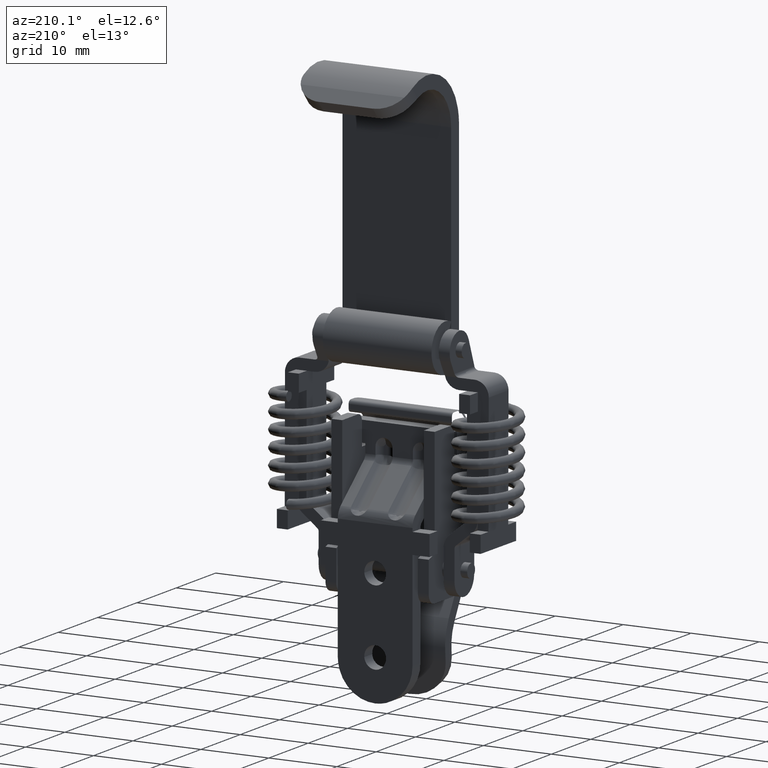
[diagram: clean part render]
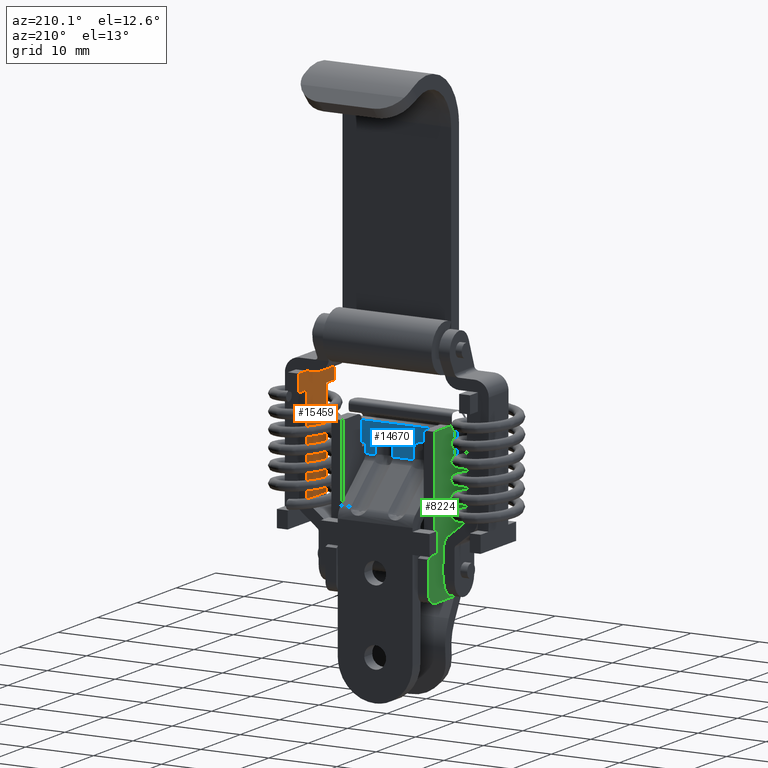
[diagram: same view with three faces highlighted in distinct colors, each labeled with its STEP entity id]
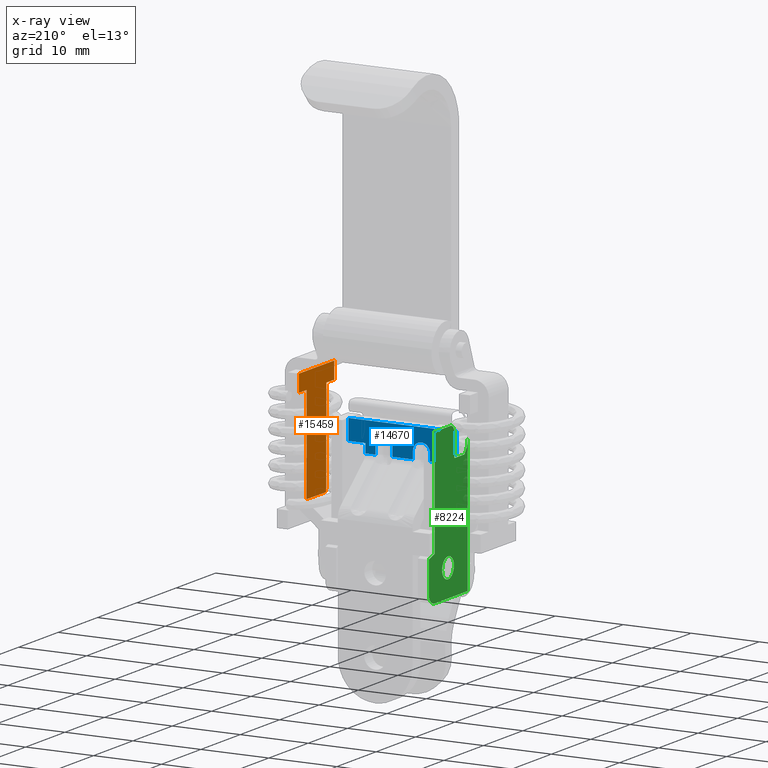
[diagram: x-ray of the same camera — body ghosted, the three highlighted faces saturated]
A machine part, auxiliary view with three faces highlighted in distinct colors.
The next image is the same camera in x-ray (body ghosted, the three faces saturated) — at least one of them is partly hidden behind the body in this view.
Their STEP definitions:

[orange] entity #15459 — the highlighted face is a freeform B-spline surface patch.
#14922=CARTESIAN_POINT('',(11.800003000000020,0.074714001614679,-21.751745550753700));
#14923=VERTEX_POINT('',#14922);
#14937=CARTESIAN_POINT('',(11.800003000000061,0.024935818044354,-7.491404451429734));
#14938=VERTEX_POINT('',#14937);
#14939=CARTESIAN_POINT('',(11.800003000000061,0.024935818044354,-7.491404451429734));
#14940=CARTESIAN_POINT('',(11.800003000000020,0.074714001614679,-21.751745550753700));
#14941=QUASI_UNIFORM_CURVE('',1,(#14939,#14940),.UNSPECIFIED.,.F.,.U.);
#14942=EDGE_CURVE('',#14938,#14923,#14941,.T.);
#15145=CARTESIAN_POINT('',(11.800003000000061,-4.975033783586811,-7.508857708889881));
#15146=VERTEX_POINT('',#15145);
#15152=CARTESIAN_POINT('',(11.800003000000020,-4.925255600016492,-21.769198808213851));
#15153=VERTEX_POINT('',#15152);
#15154=CARTESIAN_POINT('',(11.800003000000020,-4.925255600016492,-21.769198808213851));
#15155=CARTESIAN_POINT('',(11.800003000000061,-4.975033783586811,-7.508857708889881));
#15156=QUASI_UNIFORM_CURVE('',1,(#15154,#15155),.UNSPECIFIED.,.F.,.U.);
#15157=EDGE_CURVE('',#15153,#15146,#15156,.T.);
#15211=CARTESIAN_POINT('',(11.800003000000020,2.016197082326523,-4.984453347539087));
#15212=VERTEX_POINT('',#15211);
#15225=CARTESIAN_POINT('',(11.800003000000061,2.024923658696819,-7.484423148445675));
#15226=VERTEX_POINT('',#15225);
#15232=CARTESIAN_POINT('',(11.800003000000020,2.016197082326523,-4.984453347539087));
#15233=CARTESIAN_POINT('',(11.800003000000061,2.024923658696819,-7.484423148445675));
#15234=QUASI_UNIFORM_CURVE('',1,(#15232,#15233),.UNSPECIFIED.,.F.,.U.);
#15235=EDGE_CURVE('',#15212,#15226,#15234,.T.);
#15252=CARTESIAN_POINT('',(11.800003000000061,2.024923658696819,-7.484423148445675));
#15253=CARTESIAN_POINT('',(11.800003000000061,0.024935818044354,-7.491404451429734));
#15254=QUASI_UNIFORM_CURVE('',1,(#15252,#15253),.UNSPECIFIED.,.F.,.U.);
#15255=EDGE_CURVE('',#15226,#14938,#15254,.T.);
#15273=CARTESIAN_POINT('',(11.800003000000061,-6.975021624239162,-7.515839011873940));
#15274=VERTEX_POINT('',#15273);
#15280=CARTESIAN_POINT('',(11.800003000000061,-4.975033783586811,-7.508857708889881));
#15281=CARTESIAN_POINT('',(11.800003000000061,-6.975021624239162,-7.515839011873940));
#15282=QUASI_UNIFORM_CURVE('',1,(#15280,#15281),.UNSPECIFIED.,.F.,.U.);
#15283=EDGE_CURVE('',#15146,#15274,#15282,.T.);
#15301=CARTESIAN_POINT('',(11.800003000000020,-6.983748200609463,-5.015869210967352));
#15302=VERTEX_POINT('',#15301);
#15308=CARTESIAN_POINT('',(11.800003000000061,-6.975021624239162,-7.515839011873940));
#15309=CARTESIAN_POINT('',(11.800003000000020,-6.983748200609463,-5.015869210967352));
#15310=QUASI_UNIFORM_CURVE('',1,(#15308,#15309),.UNSPECIFIED.,.F.,.U.);
#15311=EDGE_CURVE('',#15274,#15302,#15310,.T.);
#15429=CARTESIAN_POINT('',(11.800003000000020,2.016197082326523,-4.984453347539087));
#15430=CARTESIAN_POINT('',(11.800003000000020,-6.983748200609463,-5.015869210967352));
#15431=QUASI_UNIFORM_CURVE('',1,(#15429,#15430),.UNSPECIFIED.,.F.,.U.);
#15432=EDGE_CURVE('',#15212,#15302,#15431,.T.);
#15440=CARTESIAN_POINT('',(11.800003000000020,-7.436217762694115,-4.180260936302923));
#15441=CARTESIAN_POINT('',(11.800003000000020,-7.371868375892993,-22.614927280043620));
#15442=CARTESIAN_POINT('',(11.800003000000020,2.462822260517238,-4.145706627397315));
#15443=CARTESIAN_POINT('',(11.800003000000020,2.527171647318360,-22.580372971138011));
#15444=B_SPLINE_SURFACE_WITH_KNOTS('',1,1,((#15440,#15442),(#15441,#15443)),.UNSPECIFIED.,.F.,.F.,.U.,(2,2),(2,2),(0.0,18.434778421179459),(0.0,9.899100206511196),.UNSPECIFIED.);
#15445=ORIENTED_EDGE('',*,*,#15283,.T.);
#15446=ORIENTED_EDGE('',*,*,#15311,.T.);
#15447=ORIENTED_EDGE('',*,*,#15432,.F.);
#15448=ORIENTED_EDGE('',*,*,#15235,.T.);
#15449=ORIENTED_EDGE('',*,*,#15255,.T.);
#15450=ORIENTED_EDGE('',*,*,#14942,.T.);
#15451=CARTESIAN_POINT('',(11.800003000000020,0.074714001614679,-21.751745550753700));
#15452=CARTESIAN_POINT('',(11.800003000000020,-4.925255600016492,-21.769198808213851));
#15453=QUASI_UNIFORM_CURVE('',1,(#15451,#15452),.UNSPECIFIED.,.F.,.U.);
#15454=EDGE_CURVE('',#14923,#15153,#15453,.T.);
#15455=ORIENTED_EDGE('',*,*,#15454,.T.);
#15456=ORIENTED_EDGE('',*,*,#15157,.T.);
#15457=EDGE_LOOP('',(#15445,#15446,#15447,#15448,#15449,#15450,#15455,#15456));
#15458=FACE_OUTER_BOUND('',#15457,.T.);
#15459=ADVANCED_FACE('',(#15458),#15444,.F.);

[blue] entity #14670 — the highlighted face is a freeform B-spline surface patch.
#12302=CARTESIAN_POINT('',(-4.0,-4.0,-15.852875247089701));
#12303=VERTEX_POINT('',#12302);
#12318=CARTESIAN_POINT('',(-5.500000000000000,-4.0,-15.852875247089701));
#12319=VERTEX_POINT('',#12318);
#12333=CARTESIAN_POINT('',(-5.500000000000000,-4.0,-15.852875247089701));
#12334=CARTESIAN_POINT('',(-4.0,-4.0,-15.852875247089701));
#12335=QUASI_UNIFORM_CURVE('',1,(#12333,#12334),.UNSPECIFIED.,.F.,.U.);
#12336=EDGE_CURVE('',#12319,#12303,#12335,.T.);
#12368=CARTESIAN_POINT('',(1.499999999999946,-4.0,-14.750014999999999));
#12369=VERTEX_POINT('',#12368);
#12383=CARTESIAN_POINT('',(2.750000000013761,-4.000000000173091,-13.500015000129819));
#12384=VERTEX_POINT('',#12383);
#12385=CARTESIAN_POINT('',(2.750000000013762,-4.000000000173093,-13.500015000129821));
#12386=CARTESIAN_POINT('',(1.499999999999973,-4.000000000086545,-13.500015000051153));
#12387=CARTESIAN_POINT('',(1.499999999999946,-4.0,-14.750014999999999));
#12395=(BOUNDED_CURVE()B_SPLINE_CURVE(2,(#12385,#12386,#12387),.UNSPECIFIED.,.F.,.U.)B_SPLINE_CURVE_WITH_KNOTS((3,3),(0.499999999996108,1.0),.UNSPECIFIED.)CURVE()GEOMETRIC_REPRESENTATION_ITEM()RATIONAL_B_SPLINE_CURVE((1.000000000004560,0.707106781184268,1.0))REPRESENTATION_ITEM(''));
#12396=EDGE_CURVE('',#12384,#12369,#12395,.T.);
#12442=CARTESIAN_POINT('',(4.0,-4.0,-14.750014999999999));
#12443=VERTEX_POINT('',#12442);
#12444=CARTESIAN_POINT('',(4.0,-4.0,-14.750014999999999));
#12445=CARTESIAN_POINT('',(4.0,-4.000000000086545,-13.500015000078671));
#12446=CARTESIAN_POINT('',(2.750000000013761,-4.000000000173091,-13.500015000129819));
#12454=(BOUNDED_CURVE()B_SPLINE_CURVE(2,(#12444,#12445,#12446),.UNSPECIFIED.,.F.,.U.)B_SPLINE_CURVE_WITH_KNOTS((3,3),(0.0,0.499999999996108),.UNSPECIFIED.)CURVE()GEOMETRIC_REPRESENTATION_ITEM()RATIONAL_B_SPLINE_CURVE((1.0,0.707106781188828,0.999999999995440))REPRESENTATION_ITEM(''));
#12455=EDGE_CURVE('',#12443,#12384,#12454,.T.);
#12500=CARTESIAN_POINT('',(-4.0,-4.0,-14.750014999999999));
#12501=VERTEX_POINT('',#12500);
#12515=CARTESIAN_POINT('',(-2.749999999986240,-4.000000000173091,-13.500015000129819));
#12516=VERTEX_POINT('',#12515);
#12517=CARTESIAN_POINT('',(-2.749999999986238,-4.000000000173089,-13.500015000129810));
#12518=CARTESIAN_POINT('',(-4.000000000000000,-4.000000000086545,-13.500015000051148));
#12519=CARTESIAN_POINT('',(-4.0,-4.0,-14.750014999999999));
#12527=(BOUNDED_CURVE()B_SPLINE_CURVE(2,(#12517,#12518,#12519),.UNSPECIFIED.,.F.,.U.)B_SPLINE_CURVE_WITH_KNOTS((3,3),(0.499999999996108,1.0),.UNSPECIFIED.)CURVE()GEOMETRIC_REPRESENTATION_ITEM()RATIONAL_B_SPLINE_CURVE((1.000000000004560,0.707106781184268,1.0))REPRESENTATION_ITEM(''));
#12528=EDGE_CURVE('',#12516,#12501,#12527,.T.);
#12574=CARTESIAN_POINT('',(-1.499999999999946,-4.0,-14.750014999999999));
#12575=VERTEX_POINT('',#12574);
#12576=CARTESIAN_POINT('',(-1.499999999999946,-4.0,-14.750014999999999));
#12577=CARTESIAN_POINT('',(-1.499999999999973,-4.000000000086545,-13.500015000078667));
#12578=CARTESIAN_POINT('',(-2.749999999986240,-4.000000000173091,-13.500015000129819));
#12586=(BOUNDED_CURVE()B_SPLINE_CURVE(2,(#12576,#12577,#12578),.UNSPECIFIED.,.F.,.U.)B_SPLINE_CURVE_WITH_KNOTS((3,3),(0.0,0.499999999996108),.UNSPECIFIED.)CURVE()GEOMETRIC_REPRESENTATION_ITEM()RATIONAL_B_SPLINE_CURVE((1.0,0.707106781188828,0.999999999995440))REPRESENTATION_ITEM(''));
#12587=EDGE_CURVE('',#12575,#12516,#12586,.T.);
#12638=CARTESIAN_POINT('',(1.499999999999946,-4.0,-15.852875247089701));
#12639=VERTEX_POINT('',#12638);
#12741=CARTESIAN_POINT('',(1.499999999999946,-4.0,-14.750014999999999));
#12742=CARTESIAN_POINT('',(1.499999999999946,-4.0,-15.852875247089701));
#12743=QUASI_UNIFORM_CURVE('',1,(#12741,#12742),.UNSPECIFIED.,.F.,.U.);
#12744=EDGE_CURVE('',#12369,#12639,#12743,.T.);
#12901=CARTESIAN_POINT('',(4.0,-4.0,-15.852875247089701));
#12902=VERTEX_POINT('',#12901);
#12918=CARTESIAN_POINT('',(4.0,-4.0,-14.750014999999999));
#12919=CARTESIAN_POINT('',(4.0,-4.0,-15.852875247089701));
#12920=QUASI_UNIFORM_CURVE('',1,(#12918,#12919),.UNSPECIFIED.,.F.,.U.);
#12921=EDGE_CURVE('',#12443,#12902,#12920,.T.);
#13610=CARTESIAN_POINT('',(-4.0,-4.0,-14.750014999999999));
#13611=CARTESIAN_POINT('',(-4.0,-4.0,-15.852875247089701));
#13612=QUASI_UNIFORM_CURVE('',1,(#13610,#13611),.UNSPECIFIED.,.F.,.U.);
#13613=EDGE_CURVE('',#12501,#12303,#13612,.T.);
#13756=CARTESIAN_POINT('',(-1.499999999999946,-4.0,-15.852875247089701));
#13757=VERTEX_POINT('',#13756);
#13773=CARTESIAN_POINT('',(-1.499999999999946,-4.0,-14.750014999999999));
#13774=CARTESIAN_POINT('',(-1.499999999999946,-4.0,-15.852875247089701));
#13775=QUASI_UNIFORM_CURVE('',1,(#13773,#13774),.UNSPECIFIED.,.F.,.U.);
#13776=EDGE_CURVE('',#12575,#13757,#13775,.T.);
#14381=CARTESIAN_POINT('',(5.500000000000000,-4.0,-15.852875247089701));
#14382=VERTEX_POINT('',#14381);
#14396=CARTESIAN_POINT('',(5.500000000000000,-4.0,-14.500000000000000));
#14397=VERTEX_POINT('',#14396);
#14398=CARTESIAN_POINT('',(5.500000000000000,-4.0,-15.852875247089701));
#14399=CARTESIAN_POINT('',(5.500000000000000,-4.0,-14.500000000000000));
#14400=QUASI_UNIFORM_CURVE('',1,(#14398,#14399),.UNSPECIFIED.,.F.,.U.);
#14401=EDGE_CURVE('',#14382,#14397,#14400,.T.);
#14425=CARTESIAN_POINT('',(-5.500000000000000,-4.0,-14.500000000000000));
#14426=VERTEX_POINT('',#14425);
#14432=CARTESIAN_POINT('',(-5.500000000000000,-4.0,-14.500000000000000));
#14433=CARTESIAN_POINT('',(-5.500000000000000,-4.0,-15.852875247089701));
#14434=QUASI_UNIFORM_CURVE('',1,(#14432,#14433),.UNSPECIFIED.,.F.,.U.);
#14435=EDGE_CURVE('',#14426,#12319,#14434,.T.);
#14464=CARTESIAN_POINT('',(8.0,-4.0,-14.500000000000000));
#14465=VERTEX_POINT('',#14464);
#14466=CARTESIAN_POINT('',(5.500000000000000,-4.0,-14.500000000000000));
#14467=CARTESIAN_POINT('',(8.0,-4.0,-14.500000000000000));
#14468=QUASI_UNIFORM_CURVE('',1,(#14466,#14467),.UNSPECIFIED.,.F.,.U.);
#14469=EDGE_CURVE('',#14397,#14465,#14468,.T.);
#14486=CARTESIAN_POINT('',(8.0,-4.0,-11.500000000000000));
#14487=VERTEX_POINT('',#14486);
#14488=CARTESIAN_POINT('',(8.0,-4.0,-14.500000000000000));
#14489=CARTESIAN_POINT('',(8.0,-4.0,-11.500000000000000));
#14490=QUASI_UNIFORM_CURVE('',1,(#14488,#14489),.UNSPECIFIED.,.F.,.U.);
#14491=EDGE_CURVE('',#14465,#14487,#14490,.T.);
#14508=CARTESIAN_POINT('',(-8.0,-4.0,-11.500000000000000));
#14509=VERTEX_POINT('',#14508);
#14510=CARTESIAN_POINT('',(8.0,-4.0,-11.500000000000000));
#14511=CARTESIAN_POINT('',(-8.0,-4.0,-11.500000000000000));
#14512=QUASI_UNIFORM_CURVE('',1,(#14510,#14511),.UNSPECIFIED.,.F.,.U.);
#14513=EDGE_CURVE('',#14487,#14509,#14512,.T.);
#14530=CARTESIAN_POINT('',(-8.0,-4.0,-14.500000000000000));
#14531=VERTEX_POINT('',#14530);
#14532=CARTESIAN_POINT('',(-8.0,-4.0,-11.500000000000000));
#14533=CARTESIAN_POINT('',(-8.0,-4.0,-14.500000000000000));
#14534=QUASI_UNIFORM_CURVE('',1,(#14532,#14533),.UNSPECIFIED.,.F.,.U.);
#14535=EDGE_CURVE('',#14509,#14531,#14534,.T.);
#14552=CARTESIAN_POINT('',(-8.0,-4.0,-14.500000000000000));
#14553=CARTESIAN_POINT('',(-5.500000000000000,-4.0,-14.500000000000000));
#14554=QUASI_UNIFORM_CURVE('',1,(#14552,#14553),.UNSPECIFIED.,.F.,.U.);
#14555=EDGE_CURVE('',#14531,#14426,#14554,.T.);
#14630=CARTESIAN_POINT('',(-1.499999999999946,-4.0,-15.852875247089701));
#14631=CARTESIAN_POINT('',(1.499999999999946,-4.0,-15.852875247089701));
#14632=QUASI_UNIFORM_CURVE('',1,(#14630,#14631),.UNSPECIFIED.,.F.,.U.);
#14633=EDGE_CURVE('',#13757,#12639,#14632,.T.);
#14641=CARTESIAN_POINT('',(-8.799199968988896,-4.0,-11.282573889844590));
#14642=CARTESIAN_POINT('',(-8.799199968988896,-4.0,-16.070301473998331));
#14643=CARTESIAN_POINT('',(8.799200398142338,-4.0,-11.282573889844590));
#14644=CARTESIAN_POINT('',(8.799200398142338,-4.0,-16.070301473998331));
#14645=B_SPLINE_SURFACE_WITH_KNOTS('',1,1,((#14641,#14643),(#14642,#14644)),.UNSPECIFIED.,.F.,.F.,.U.,(2,2),(2,2),(0.0,4.787727584153746),(0.0,17.598400367131230),.UNSPECIFIED.);
#14646=ORIENTED_EDGE('',*,*,#12921,.F.);
#14647=ORIENTED_EDGE('',*,*,#12455,.T.);
#14648=ORIENTED_EDGE('',*,*,#12396,.T.);
#14649=ORIENTED_EDGE('',*,*,#12744,.T.);
#14650=ORIENTED_EDGE('',*,*,#14633,.F.);
#14651=ORIENTED_EDGE('',*,*,#13776,.F.);
#14652=ORIENTED_EDGE('',*,*,#12587,.T.);
#14653=ORIENTED_EDGE('',*,*,#12528,.T.);
#14654=ORIENTED_EDGE('',*,*,#13613,.T.);
#14655=ORIENTED_EDGE('',*,*,#12336,.F.);
#14656=ORIENTED_EDGE('',*,*,#14435,.F.);
#14657=ORIENTED_EDGE('',*,*,#14555,.F.);
#14658=ORIENTED_EDGE('',*,*,#14535,.F.);
#14659=ORIENTED_EDGE('',*,*,#14513,.F.);
#14660=ORIENTED_EDGE('',*,*,#14491,.F.);
#14661=ORIENTED_EDGE('',*,*,#14469,.F.);
#14662=ORIENTED_EDGE('',*,*,#14401,.F.);
#14663=CARTESIAN_POINT('',(4.0,-4.0,-15.852875247089701));
#14664=CARTESIAN_POINT('',(5.500000000000000,-4.0,-15.852875247089701));
#14665=QUASI_UNIFORM_CURVE('',1,(#14663,#14664),.UNSPECIFIED.,.F.,.U.);
#14666=EDGE_CURVE('',#12902,#14382,#14665,.T.);
#14667=ORIENTED_EDGE('',*,*,#14666,.F.);
#14668=EDGE_LOOP('',(#14646,#14647,#14648,#14649,#14650,#14651,#14652,#14653,#14654,#14655,#14656,#14657,#14658,#14659,#14660,#14661,#14662,#14667));
#14669=FACE_OUTER_BOUND('',#14668,.T.);
#14670=ADVANCED_FACE('',(#14669),#14645,.F.);

[green] entity #8224 — the highlighted face is a freeform B-spline surface patch.
#6288=CARTESIAN_POINT('',(-7.600006000000001,-0.902797802386802,-29.091572809623930));
#6289=VERTEX_POINT('',#6288);
#6295=CARTESIAN_POINT('',(-7.600006000000001,-2.400000000000030,-30.500000000000099));
#6296=VERTEX_POINT('',#6295);
#6297=CARTESIAN_POINT('',(-7.600006000000001,-2.400000000000030,-30.500000000000099));
#6298=CARTESIAN_POINT('',(-7.600006000000000,-0.988940899945088,-30.500000000000096));
#6299=CARTESIAN_POINT('',(-7.600006000000001,-0.902797802386802,-29.091572809623926));
#6307=(BOUNDED_CURVE()B_SPLINE_CURVE(2,(#6297,#6298,#6299),.UNSPECIFIED.,.F.,.U.)B_SPLINE_CURVE_WITH_KNOTS((3,3),(0.500000000000000,0.739332962204901),.UNSPECIFIED.)CURVE()GEOMETRIC_REPRESENTATION_ITEM()RATIONAL_B_SPLINE_CURVE((1.0,0.719603993326593,0.976072041593760))REPRESENTATION_ITEM(''));
#6308=EDGE_CURVE('',#6296,#6289,#6307,.T.);
#6310=CARTESIAN_POINT('',(-7.600006000000001,-3.897202197613258,-28.908427190376070));
#6311=VERTEX_POINT('',#6310);
#6312=CARTESIAN_POINT('',(-7.600006000000001,-3.897202197613258,-28.908427190376070));
#6313=CARTESIAN_POINT('',(-7.600006000000002,-3.900000000000131,-28.954170854890851));
#6314=CARTESIAN_POINT('',(-7.600006000000001,-3.900000000000130,-29.0));
#6315=CARTESIAN_POINT('',(-7.600006000000001,-3.900000000000131,-30.500000000000099));
#6316=CARTESIAN_POINT('',(-7.600006000000001,-2.400000000000030,-30.500000000000099));
#6324=(BOUNDED_CURVE()B_SPLINE_CURVE(2,(#6312,#6313,#6314,#6315,#6316),.UNSPECIFIED.,.F.,.U.)B_SPLINE_CURVE_WITH_KNOTS((3,2,3),(0.239332962204901,0.250000000000000,0.500000000000000),.UNSPECIFIED.)CURVE()GEOMETRIC_REPRESENTATION_ITEM()RATIONAL_B_SPLINE_CURVE((0.976072041593759,0.987502787859955,1.0,0.707106781186548,1.0))REPRESENTATION_ITEM(''));
#6325=EDGE_CURVE('',#6311,#6296,#6324,.T.);
#6369=CARTESIAN_POINT('',(-7.600006000000001,-2.400000000000030,-27.499999999999901));
#6370=VERTEX_POINT('',#6369);
#6371=CARTESIAN_POINT('',(-7.600006000000001,-2.400000000000030,-27.499999999999901));
#6372=CARTESIAN_POINT('',(-7.600005999999999,-3.811059100054968,-27.499999999999904));
#6373=CARTESIAN_POINT('',(-7.600006000000001,-3.897202197613258,-28.908427190376077));
#6381=(BOUNDED_CURVE()B_SPLINE_CURVE(2,(#6371,#6372,#6373),.UNSPECIFIED.,.F.,.U.)B_SPLINE_CURVE_WITH_KNOTS((3,3),(0.0,0.239332962204901),.UNSPECIFIED.)CURVE()GEOMETRIC_REPRESENTATION_ITEM()RATIONAL_B_SPLINE_CURVE((1.0,0.719603993326593,0.976072041593759))REPRESENTATION_ITEM(''));
#6382=EDGE_CURVE('',#6370,#6311,#6381,.T.);
#6384=CARTESIAN_POINT('',(-7.600006000000001,-0.902797802386802,-29.091572809623930));
#6385=CARTESIAN_POINT('',(-7.600006000000001,-0.899999999999930,-29.045829145109160));
#6386=CARTESIAN_POINT('',(-7.600006000000001,-0.899999999999930,-29.0));
#6387=CARTESIAN_POINT('',(-7.600006000000001,-0.899999999999930,-27.499999999999904));
#6388=CARTESIAN_POINT('',(-7.600006000000001,-2.400000000000030,-27.499999999999901));
#6396=(BOUNDED_CURVE()B_SPLINE_CURVE(2,(#6384,#6385,#6386,#6387,#6388),.UNSPECIFIED.,.F.,.U.)B_SPLINE_CURVE_WITH_KNOTS((3,2,3),(0.739332962204901,0.750000000000000,1.0),.UNSPECIFIED.)CURVE()GEOMETRIC_REPRESENTATION_ITEM()RATIONAL_B_SPLINE_CURVE((0.976072041593759,0.987502787859955,1.0,0.707106781186548,1.0))REPRESENTATION_ITEM(''));
#6397=EDGE_CURVE('',#6289,#6370,#6396,.T.);
#6862=CARTESIAN_POINT('',(-7.600006000000001,0.999999921460180,-33.0));
#6863=VERTEX_POINT('',#6862);
#6869=CARTESIAN_POINT('',(-7.600006000000001,2.500000000000000,-31.500000000000000));
#6870=VERTEX_POINT('',#6869);
#6871=CARTESIAN_POINT('',(-7.600006000000001,0.999999921460180,-33.0));
#6872=CARTESIAN_POINT('',(-7.600006000000004,1.134994208476357,-33.000042618724677));
#6873=CARTESIAN_POINT('',(-7.600006000000001,1.368134242795172,-32.968303379748590));
#6874=CARTESIAN_POINT('',(-7.600005999999995,1.690274495055020,-32.844032664000743));
#6875=CARTESIAN_POINT('',(-7.600006000000013,1.990449379325292,-32.648818491765702));
#6876=CARTESIAN_POINT('',(-7.600006000000001,2.240354365945812,-32.373061262335611));
#6877=CARTESIAN_POINT('',(-7.600005999999997,2.445053657254077,-31.978494858116012));
#6878=CARTESIAN_POINT('',(-7.600006000000006,2.500170274500979,-31.684107659116979));
#6879=CARTESIAN_POINT('',(-7.600006000000001,2.500000000000000,-31.500000000000000));
#6880=B_SPLINE_CURVE_WITH_KNOTS('',3,(#6871,#6872,#6873,#6874,#6875,#6876,#6877,#6878,#6879),.UNSPECIFIED.,.F.,.U.,(4,1,1,1,1,1,4),(0.000000129347288,0.404978197759987,0.699519327740939,1.030882455522323,1.472641592256466,1.804007825971585,2.356253695055632),.UNSPECIFIED.);
#6881=EDGE_CURVE('',#6863,#6870,#6880,.T.);
#6898=CARTESIAN_POINT('',(-7.600006000000001,2.500000000000000,-26.999984999999949));
#6899=VERTEX_POINT('',#6898);
#6911=CARTESIAN_POINT('',(-7.600006000000001,2.500000000000000,-26.999984999999949));
#6912=CARTESIAN_POINT('',(-7.600006000000001,2.500000000000000,-31.500000000000000));
#6913=QUASI_UNIFORM_CURVE('',1,(#6911,#6912),.UNSPECIFIED.,.F.,.U.);
#6914=EDGE_CURVE('',#6899,#6870,#6913,.T.);
#6926=CARTESIAN_POINT('',(-7.600006000000001,1.0,-26.499979999949801));
#6927=VERTEX_POINT('',#6926);
#6939=CARTESIAN_POINT('',(-7.600006000000001,1.0,-26.499979999949801));
#6940=CARTESIAN_POINT('',(-7.600006000000001,2.500000000000000,-26.999984999999949));
#6941=QUASI_UNIFORM_CURVE('',1,(#6939,#6940),.UNSPECIFIED.,.F.,.U.);
#6942=EDGE_CURVE('',#6927,#6899,#6941,.T.);
#6954=CARTESIAN_POINT('',(-7.600006000000001,1.0,-10.600005999999841));
#6955=VERTEX_POINT('',#6954);
#6967=CARTESIAN_POINT('',(-7.600006000000001,1.0,-10.600005999999841));
#6968=CARTESIAN_POINT('',(-7.600006000000001,1.0,-26.499979999949801));
#6969=QUASI_UNIFORM_CURVE('',1,(#6967,#6968),.UNSPECIFIED.,.F.,.U.);
#6970=EDGE_CURVE('',#6955,#6927,#6969,.T.);
#6982=CARTESIAN_POINT('',(-7.600006000000001,-3.0,-10.600005999999841));
#6983=VERTEX_POINT('',#6982);
#6995=CARTESIAN_POINT('',(-7.600006000000001,-3.0,-10.600005999999841));
#6996=CARTESIAN_POINT('',(-7.600006000000001,1.0,-10.600005999999841));
#6997=QUASI_UNIFORM_CURVE('',1,(#6995,#6996),.UNSPECIFIED.,.F.,.U.);
#6998=EDGE_CURVE('',#6983,#6955,#6997,.T.);
#7033=CARTESIAN_POINT('',(-7.600006000000001,-4.0,-11.600005999999841));
#7034=VERTEX_POINT('',#7033);
#7035=CARTESIAN_POINT('',(-7.600006000000001,-3.0,-10.600005999999841));
#7036=CARTESIAN_POINT('',(-7.600006000000001,-4.000000000000000,-10.600005999999839));
#7037=CARTESIAN_POINT('',(-7.600006000000001,-4.0,-11.600005999999841));
#7045=(BOUNDED_CURVE()B_SPLINE_CURVE(2,(#7035,#7036,#7037),.UNSPECIFIED.,.F.,.U.)CURVE()GEOMETRIC_REPRESENTATION_ITEM()QUASI_UNIFORM_CURVE()RATIONAL_B_SPLINE_CURVE((1.0,0.707106781186548,1.0))REPRESENTATION_ITEM(''));
#7046=EDGE_CURVE('',#6983,#7034,#7045,.T.);
#7063=CARTESIAN_POINT('',(-7.600006000000001,-4.0,-15.0));
#7064=VERTEX_POINT('',#7063);
#7076=CARTESIAN_POINT('',(-7.600006000000001,-4.0,-15.0));
#7077=CARTESIAN_POINT('',(-7.600006000000001,-4.0,-11.600005999999841));
#7078=QUASI_UNIFORM_CURVE('',1,(#7076,#7077),.UNSPECIFIED.,.F.,.U.);
#7079=EDGE_CURVE('',#7064,#7034,#7078,.T.);
#7091=CARTESIAN_POINT('',(-7.600006000000001,-6.524808697115720,-15.0));
#7092=VERTEX_POINT('',#7091);
#7104=CARTESIAN_POINT('',(-7.600006000000001,-6.524808697115720,-15.0));
#7105=CARTESIAN_POINT('',(-7.600006000000001,-4.0,-15.0));
#7106=QUASI_UNIFORM_CURVE('',1,(#7104,#7105),.UNSPECIFIED.,.F.,.U.);
#7107=EDGE_CURVE('',#7092,#7064,#7106,.T.);
#7133=CARTESIAN_POINT('',(-7.600006000000001,-7.400000000000000,-33.0));
#7134=VERTEX_POINT('',#7133);
#7148=CARTESIAN_POINT('',(-7.600006000000001,0.999999921460180,-33.0));
#7149=CARTESIAN_POINT('',(-7.600006000000001,-7.400000000000000,-33.0));
#7150=QUASI_UNIFORM_CURVE('',1,(#7148,#7149),.UNSPECIFIED.,.F.,.U.);
#7151=EDGE_CURVE('',#6863,#7134,#7150,.T.);
#7390=CARTESIAN_POINT('',(-7.600006000000001,-7.399994000000000,-13.100005999999841));
#7391=VERTEX_POINT('',#7390);
#7534=CARTESIAN_POINT('',(-7.600006000000001,-7.400000000000000,-33.0));
#7535=CARTESIAN_POINT('',(-7.600006000000001,-7.399994000000000,-13.100005999999841));
#7536=QUASI_UNIFORM_CURVE('',1,(#7534,#7535),.UNSPECIFIED.,.F.,.U.);
#7537=EDGE_CURVE('',#7134,#7391,#7536,.T.);
#8188=CARTESIAN_POINT('',(-7.600006000000001,-7.894504980811879,-9.481126343115363));
#8189=CARTESIAN_POINT('',(-7.600006000000001,2.994505246350571,-9.481126343115363));
#8190=CARTESIAN_POINT('',(-7.600006000000001,-7.894504980811879,-34.118880257699132));
#8191=CARTESIAN_POINT('',(-7.600006000000001,2.994505246350571,-34.118880257699132));
#8192=B_SPLINE_SURFACE_WITH_KNOTS('',1,1,((#8188,#8190),(#8189,#8191)),.UNSPECIFIED.,.F.,.F.,.U.,(2,2),(2,2),(0.0,10.889010227162450),(0.0,24.637753914583769),.UNSPECIFIED.);
#8193=ORIENTED_EDGE('',*,*,#7151,.T.);
#8194=ORIENTED_EDGE('',*,*,#7537,.T.);
#8195=CARTESIAN_POINT('',(-7.600006000000001,-7.399994000000000,-13.100005999999841));
#8196=CARTESIAN_POINT('',(-7.600006000000001,-7.399994000000001,-14.251569245573478));
#8197=CARTESIAN_POINT('',(-7.600006000000001,-6.524808697115739,-15.000000000000020));
#8205=(BOUNDED_CURVE()B_SPLINE_CURVE(2,(#8195,#8196,#8197),.UNSPECIFIED.,.F.,.U.)CURVE()GEOMETRIC_REPRESENTATION_ITEM()QUASI_UNIFORM_CURVE()RATIONAL_B_SPLINE_CURVE((1.0,0.908274704824013,1.0))REPRESENTATION_ITEM(''));
#8206=EDGE_CURVE('',#7391,#7092,#8205,.T.);
#8207=ORIENTED_EDGE('',*,*,#8206,.T.);
#8208=ORIENTED_EDGE('',*,*,#7107,.T.);
#8209=ORIENTED_EDGE('',*,*,#7079,.T.);
#8210=ORIENTED_EDGE('',*,*,#7046,.F.);
#8211=ORIENTED_EDGE('',*,*,#6998,.T.);
#8212=ORIENTED_EDGE('',*,*,#6970,.T.);
#8213=ORIENTED_EDGE('',*,*,#6942,.T.);
#8214=ORIENTED_EDGE('',*,*,#6914,.T.);
#8215=ORIENTED_EDGE('',*,*,#6881,.F.);
#8216=EDGE_LOOP('',(#8193,#8194,#8207,#8208,#8209,#8210,#8211,#8212,#8213,#8214,#8215));
#8217=FACE_OUTER_BOUND('',#8216,.T.);
#8218=ORIENTED_EDGE('',*,*,#6308,.T.);
#8219=ORIENTED_EDGE('',*,*,#6397,.T.);
#8220=ORIENTED_EDGE('',*,*,#6382,.T.);
#8221=ORIENTED_EDGE('',*,*,#6325,.T.);
#8222=EDGE_LOOP('',(#8218,#8219,#8220,#8221));
#8223=FACE_BOUND('',#8222,.T.);
#8224=ADVANCED_FACE('',(#8217,#8223),#8192,.T.);